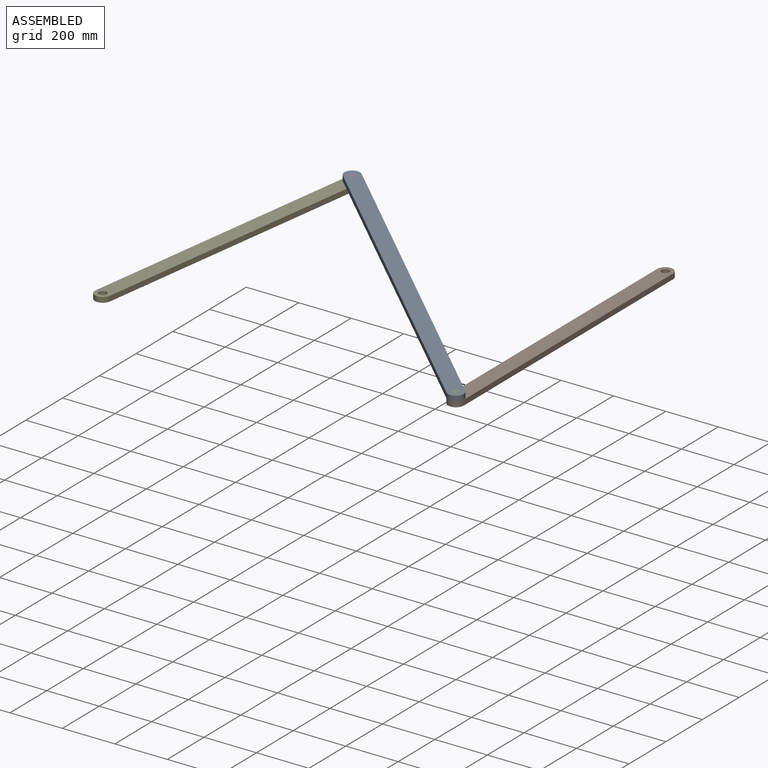
[diagram: assembled view]
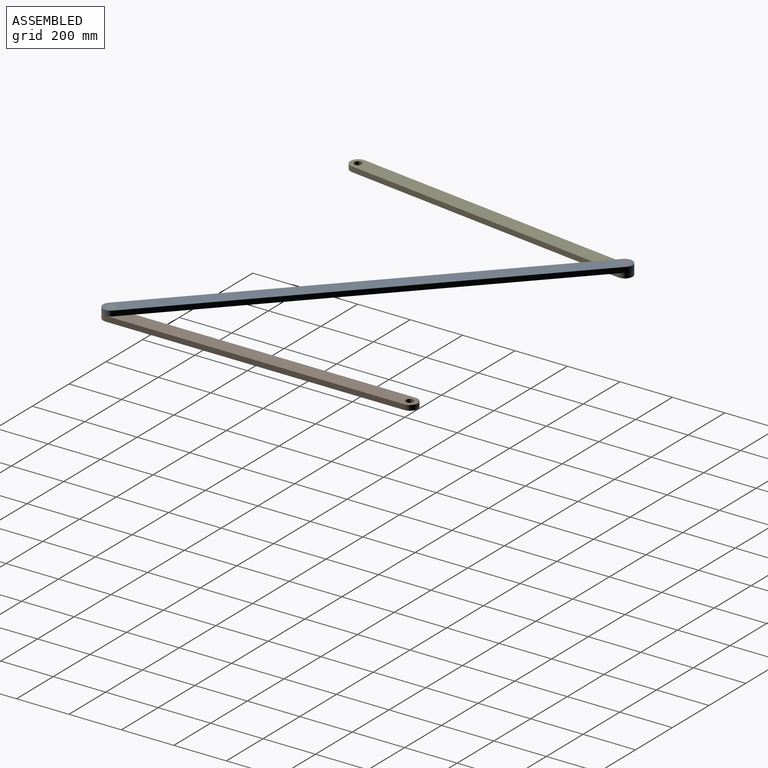
[diagram: assembled view, second angle]
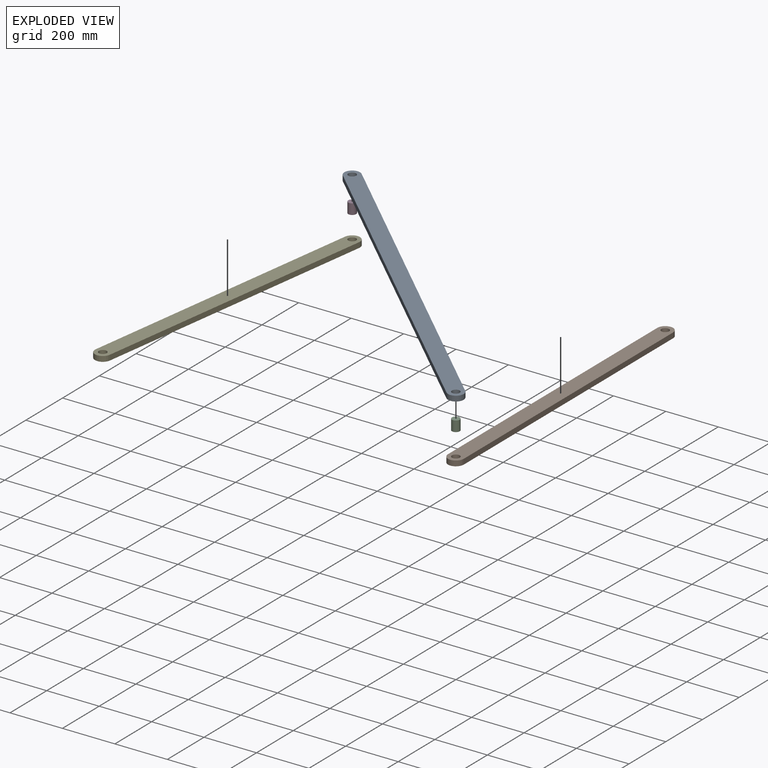
[diagram: exploded view]
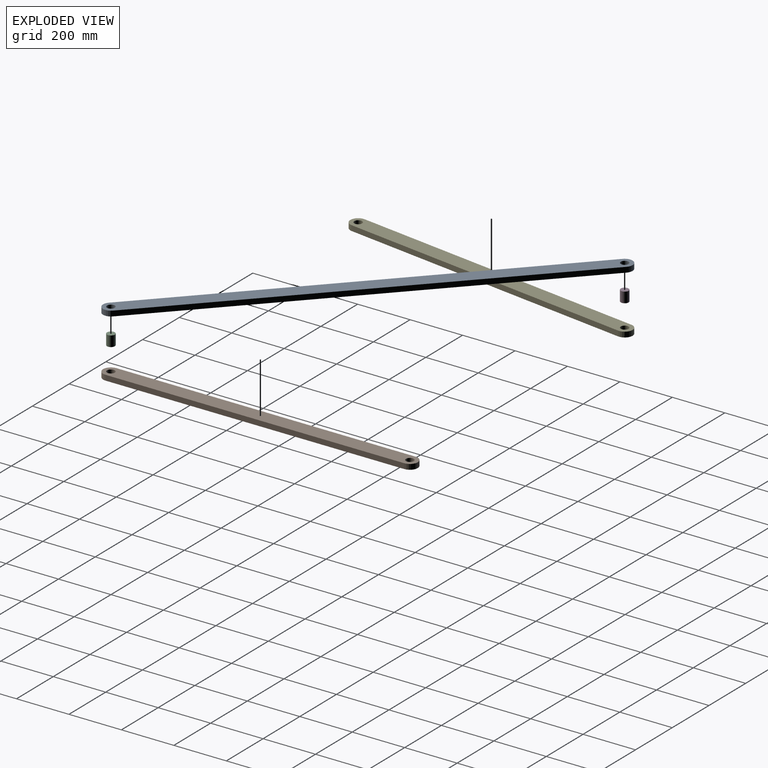
[diagram: exploded view, second angle]
ASSEMBLY  parts=5 mates=4
PART A: 8 faces, bbox 60x1697.1x20 mm
  f0: plane 1637.06x20mm, normal (-1,0,0), area 32741.1mm2, adj f1,f3,f4,f5
  f1: cylinder r=30mm len=60mm, axis (0,0,-1), area 1885mm2, adj f0,f2,f4,f5
  f2: plane 1637.06x20mm, normal (1,0,0), area 32741.1mm2, adj f1,f3,f4,f5
  f3: cylinder r=30mm len=60mm, axis (0,0,-1), area 1885mm2, adj f0,f2,f4,f5
  f4: plane 1697.06x60mm, normal (0,0,1), area 99637.1mm2, adj f0,f1,f2,f3,f6,f7
  f5: plane 1697.06x60mm, normal (0,0,-1), area 99637.1mm2, adj f0,f1,f2,f3,f6,f7
  f6: cylinder r=15mm len=30mm, axis (0,0,1), area 1885mm2, adj f4,f5
  f7: cylinder r=15mm len=30mm, axis (0,0,1), area 1885mm2, adj f4,f5
PART B: 8 faces, bbox 60x1200x20 mm
  f0: plane 1140x20mm, normal (-1,0,0), area 22800mm2, adj f1,f3,f4,f5
  f1: cylinder r=30mm len=60mm, axis (0,0,-1), area 1885mm2, adj f0,f2,f4,f5
  f2: plane 1140x20mm, normal (1,0,0), area 22800mm2, adj f1,f3,f4,f5
  f3: cylinder r=30mm len=60mm, axis (0,0,-1), area 1885mm2, adj f0,f2,f4,f5
  f4: plane 1200x60mm, normal (0,0,1), area 69813.7mm2, adj f0,f1,f2,f3,f6,f7
  f5: plane 1200x60mm, normal (0,0,-1), area 69813.7mm2, adj f0,f1,f2,f3,f6,f7
  f6: cylinder r=15mm len=30mm, axis (0,0,1), area 1885mm2, adj f4,f5
  f7: cylinder r=15mm len=30mm, axis (0,0,1), area 1885mm2, adj f4,f5
PART C: 3 faces, bbox 30x30x40 mm
  f0: cylinder r=15mm len=40mm, axis (0,0,-1), area 3769.9mm2, adj f1,f2
  f1: plane 30x30mm, normal (0,0,1), area 706.9mm2, adj f0
  f2: plane 30x30mm, normal (0,0,-1), area 706.9mm2, adj f0
PART D: same geometry as C
PART E: same geometry as B
PLACE A rot(axis=(0,0,1),46.4deg) t=(1.04,-42.41,20)mm
PLACE B t=(-30,-30,0)mm
PLACE C at identity
PLACE D rot(axis=(0,0,-1),43.6deg) t=(-1185.7,1128.75,0)mm
PLACE E rot(axis=(0,0,-1),8.1deg) t=(-1380.24,-25.35,0)mm
MATE revolute A.f1 <-> C.f0  axis (0,0,1) through (0,0,40)mm
MATE revolute D.f0 <-> A.f3  axis (0,0,1) through (-1185.7,1128.75,40)mm
MATE revolute E.f3 <-> D.f0  axis (0,0,1) through (-1185.7,1128.75,0)mm
MATE revolute B.f1 <-> C.f0  axis (0,0,-1) through (0,0,0)mm
